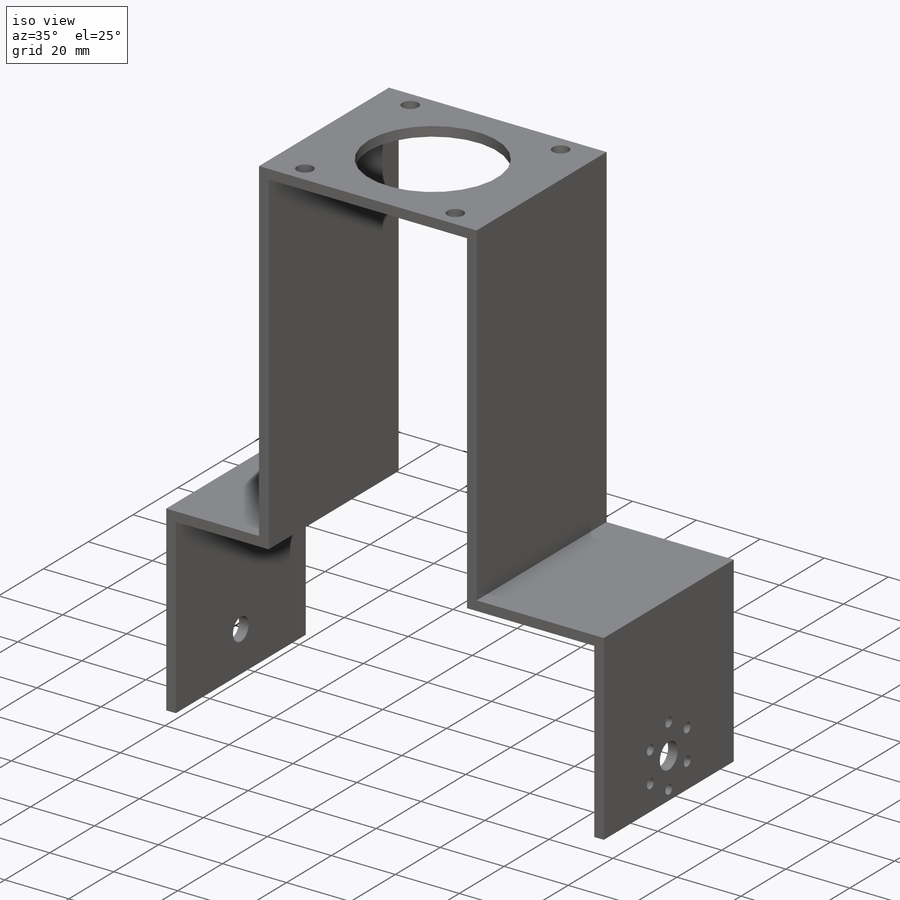
[diagram: iso view]
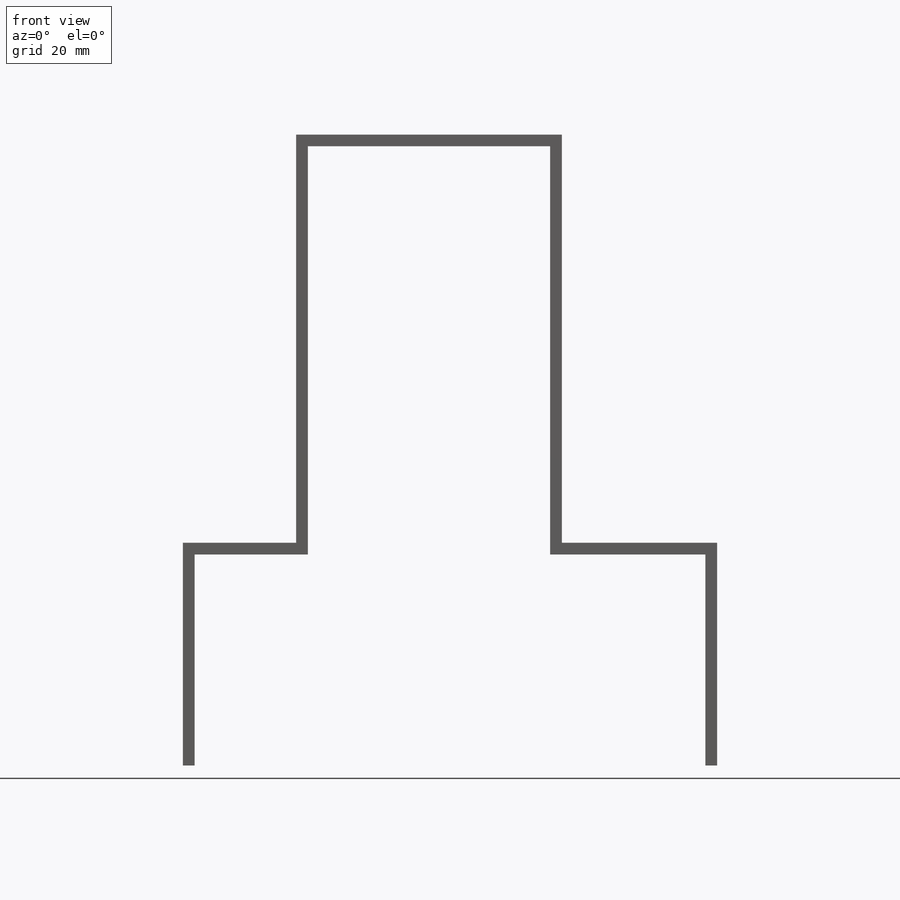
[diagram: front view]
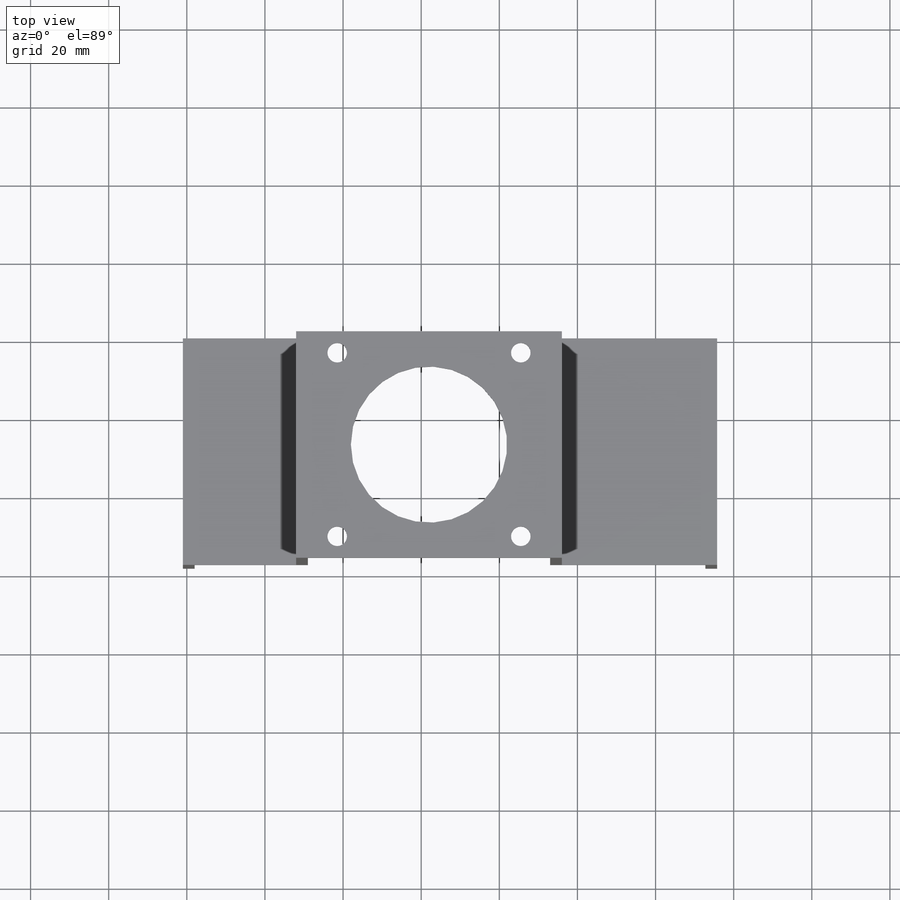
[diagram: top view]
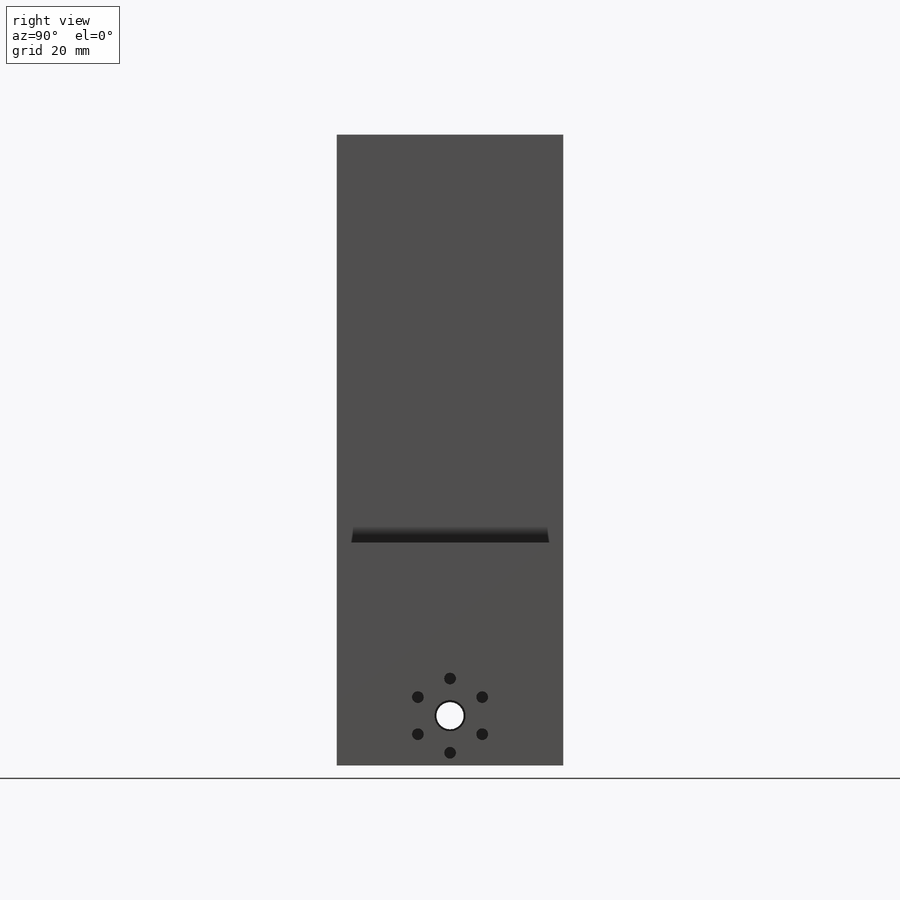
[diagram: right view]
SOLIDWORKS PART (.sldprt)
format: sldprt  version: not decoded by parser v0  size: 244,736 bytes
history: native  units: mm
features: sketch x7, cut_extrude x4, material x1, extrude x1 (+12 scaffold rows collapsed)
feature tree (25):
  scaffold x12  (default folders/planes/origin — collapsed)
  material  "1060 Alloy"
  sketch  "Sketch2"  dims[c1.D1=34.0mm c1.D2=104.5mm c1.D3=39.75mm c1.D4=57.0mm c1.D5=34.0mm c1.D6=29.0mm c1.D7=48.0mm c1.D8=57.0mm c2.D7=3.0mm]
  extrude  "Boss-Extrude1"  Depth=58mm
  sketch  "Sketch5"  dims[c1.D2=7.0mm c1.D1=12.7mm c2.D2=29.0mm]
  cut_extrude  "Cut-Extrude3"  Depth=58mm
  sketch  "Sketch7"  dims[D1=~4.135495mm]
  sketch  "Sketch8"  dims[D1=19.0mm D2=~31.345057mm]
  sketch  "Sketch15"  dims[D1=8.0mm]
  cut_extrude  "Cut-Extrude4"  Depth=10mm
  sketch  "Sketch16"  dims[D1=3.0mm D2=6.0]
  cut_extrude  "Cut-Extrude5"  Depth=10mm
  sketch  "Sketch17"  dims[c1.D3=40.0mm c1.D4=5.0mm c1.D1=5.5mm c1.D2=10.5mm c2.D3=~1.061068mm]
  cut_extrude  "Cut-Extrude6"  Depth=10mm
decode coverage: 12 of 12 modeling features carry decoded parameters
note: ~ marks probable driven/reference dimensions
note: suppression state not decoded; provenance and decode notes live in map.json
